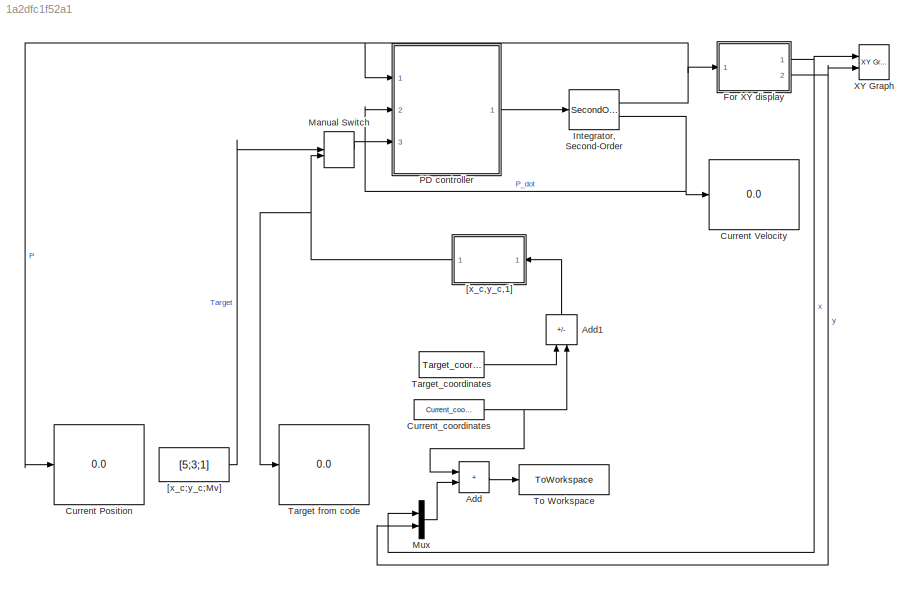
MODEL slx_1a2dfc1f52a1
KIND model
CONFIG AbsTol = auto
CONFIG EnableMultiTasking = off
CONFIG FixedStep = auto
CONFIG MaxStep = auto
CONFIG MinStep = auto
CONFIG RelTol = 1e-3
CONFIG SampleTimeConstraint = Unconstrained
CONFIG SolverName = VariableStepAuto
CONFIG StartTime = 0.0
CONFIG StopTime = 10.0
BLOCK [Sum] Add
  IconShape = rectangular
  Ports = [2, 1]
BLOCK [Sum] Add1
  IconShape = rectangular
  Inputs = +-
  NameLocation = right
  Ports = [2, 1]
BLOCK [Display] Current Position
  Decimation = 1
  Ports = [1]
BLOCK [Display] Current Velocity
  Decimation = 1
  Ports = [1]
BLOCK [Constant] Current_coordinates
  Value = Current_coordinates
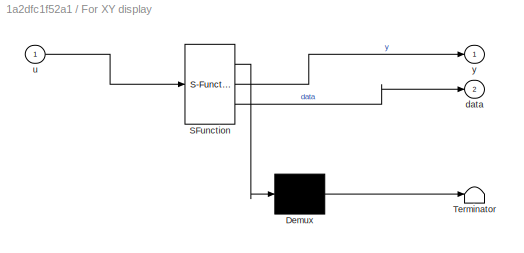
BLOCK [SubSystem] For XY display
  ErrorFcn = Stateflow.Translate.translate
  PermitHierarchicalResolution = ExplicitOnly
  Ports = [1, 2]
  RequestExecContextInheritance = off
  SFBlockType = MATLAB Function
  TreatAsAtomicUnit = on
BLOCK [Demux] For XY display/ Demux 
  Outputs = 1
  Ports = [1, 1]
BLOCK [S-Function] For XY display/ SFunction 
  EnableBusSupport = on
  FunctionName = sf_sfun
  PortCounts = [1 3]
  Ports = [1, 3]
  SFcnIsStateOwnerBlock = off
  SFunctionDeploymentMode = off
  Tag = Stateflow S-Function 3
BLOCK [Terminator] For XY display/ Terminator 
BLOCK [Outport] For XY display/data
  Port = 2
BLOCK [Inport] For XY display/u
BLOCK [Outport] For XY display/y
BLOCK [SecondOrderIntegrator] Integrator, Second-Order
  Ports = [1, 2]
BLOCK [ManualSwitch] Manual Switch
  CurrentSetting = 0
BLOCK [Mux] Mux
  DisplayOption = bar
  Inputs = 2
  Ports = [2, 1]
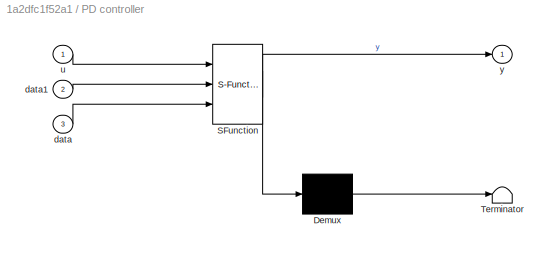
BLOCK [SubSystem] PD controller
  ErrorFcn = Stateflow.Translate.translate
  PermitHierarchicalResolution = ExplicitOnly
  Ports = [3, 1]
  RequestExecContextInheritance = off
  SFBlockType = MATLAB Function
  TreatAsAtomicUnit = on
BLOCK [Demux] PD controller/ Demux 
  Outputs = 1
  Ports = [1, 1]
BLOCK [S-Function] PD controller/ SFunction 
  EnableBusSupport = on
  FunctionName = sf_sfun
  PortCounts = [3 2]
  Ports = [3, 2]
  SFcnIsStateOwnerBlock = off
  SFunctionDeploymentMode = off
  Tag = Stateflow S-Function 2
BLOCK [Terminator] PD controller/ Terminator 
BLOCK [Inport] PD controller/data
  Port = 3
BLOCK [Inport] PD controller/data1
  Port = 2
BLOCK [Inport] PD controller/u
BLOCK [Outport] PD controller/y
BLOCK [Display] Target from code
  Decimation = 1
  Ports = [1]
BLOCK [Constant] Target_coordinates
  Value = Target_coordinates
BLOCK [ToWorkspace] To Workspace
  FixptAsFi = on
  MaxDataPoints = inf
  Ports = [1]
  SampleTime = -1
  SaveFormat = Timeseries
  VariableName = path_coordinates
BLOCK [Reference] XY Graph  REF=simulink/Sinks/XY Graph
  Ports = [2]
  SourceBlock = simulink/Sinks/XY Graph
  SourceProductBaseCode = SL
  SourceType = XY scope.
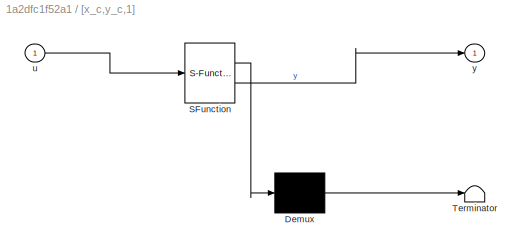
BLOCK [SubSystem] [x_c,y_c,1]
  ErrorFcn = Stateflow.Translate.translate
  NameLocation = top
  PermitHierarchicalResolution = ExplicitOnly
  Ports = [1, 1]
  RequestExecContextInheritance = off
  SFBlockType = MATLAB Function
  TreatAsAtomicUnit = on
BLOCK [Demux] [x_c,y_c,1]/ Demux 
  Outputs = 1
  Ports = [1, 1]
BLOCK [S-Function] [x_c,y_c,1]/ SFunction 
  EnableBusSupport = on
  FunctionName = sf_sfun
  PortCounts = [1 2]
  Ports = [1, 2]
  SFcnIsStateOwnerBlock = off
  SFunctionDeploymentMode = off
  Tag = Stateflow S-Function 1
BLOCK [Terminator] [x_c,y_c,1]/ Terminator 
BLOCK [Inport] [x_c,y_c,1]/u
BLOCK [Outport] [x_c,y_c,1]/y
BLOCK [Constant] [x_c;y_c;Mv]
  Value = [5;3;1]
LINE Add1:1 -> [x_c,y_c,1]:1
LINE Add:1 -> To Workspace:1
NET Current_coordinates:1 -> Add1:2, Add:1
NET For XY display:1 -> Mux:1, XY Graph:1
NET For XY display:2 -> Mux:2, XY Graph:2
NET Integrator, Second-Order:1 -> Current Position:1, For XY display:1, PD controller:1
NET Integrator, Second-Order:2 -> Current Velocity:1, PD controller:2
LINE Manual Switch:1 -> PD controller:3
LINE Mux:1 -> Add:2
LINE PD controller:1 -> Integrator, Second-Order:1
LINE Target_coordinates:1 -> Add1:1
NET [x_c,y_c,1]:1 -> Manual Switch:2, Target from code:1
LINE [x_c;y_c;Mv]:1 -> Manual Switch:1
note: NET lines group one-source signal fan-out (src -> all destinations, sorted); 1:1 wires keep LINE
CHART PD controller states=1 transitions=1
  STATE_LABEL 'eML_blk_kernel()'
  STATE_LABEL 'SCRIPT:\nfunction y = fcn(u, data1, data)\n%data=[x_c;y_c;M_v] u=[x;y] data1=[x_dot;y_dot]\nk1=3;\nk2=2;\nCv=data(1:2);\ny = -k1*data(3)*(u-Cv)-k2*data1;\n'
CHART For XY display states=1 transitions=1
  STATE_LABEL 'eML_blk_kernel()'
  STATE_LABEL 'SCRIPT:\nfunction [y,data] = fcn(u)\ny=u(1);\ndata = u(2);\n'
CHART [x_c,y_c,1] states=1 transitions=1
  STATE_LABEL 'eML_blk_kernel()'
  STATE_LABEL 'SCRIPT:\nfunction y = fcn(u)\n\ny = [u(1),u(2),1];\n'
CHART  states=0 transitions=0
CHART  states=0 transitions=0
CHART  states=0 transitions=0
